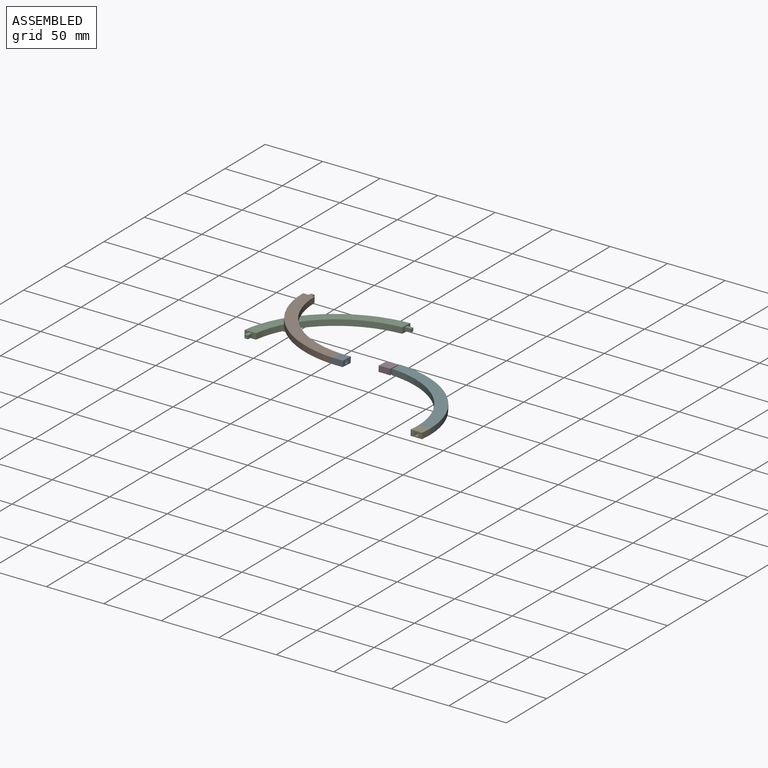
[diagram: assembled view]
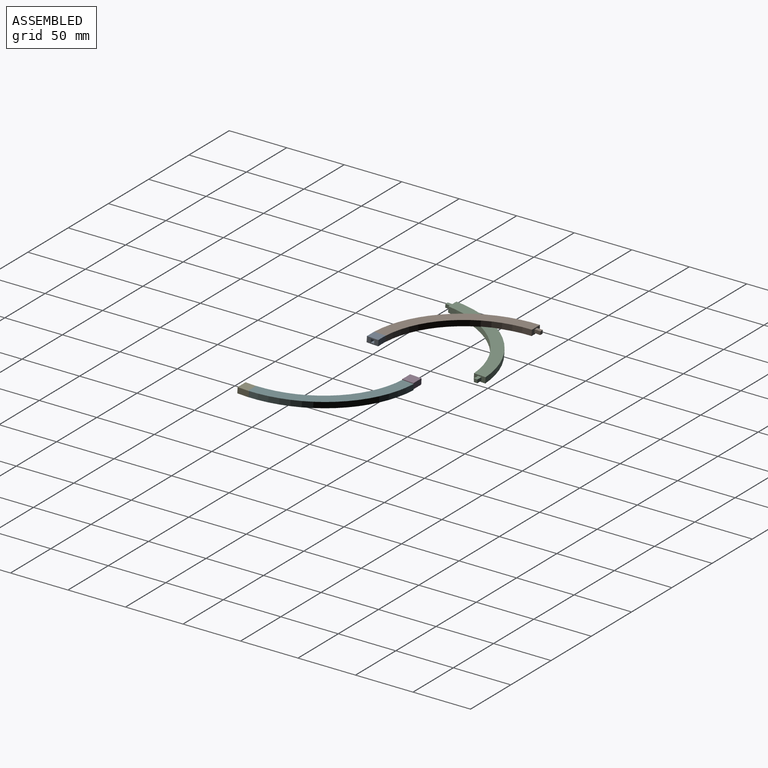
[diagram: assembled view, second angle]
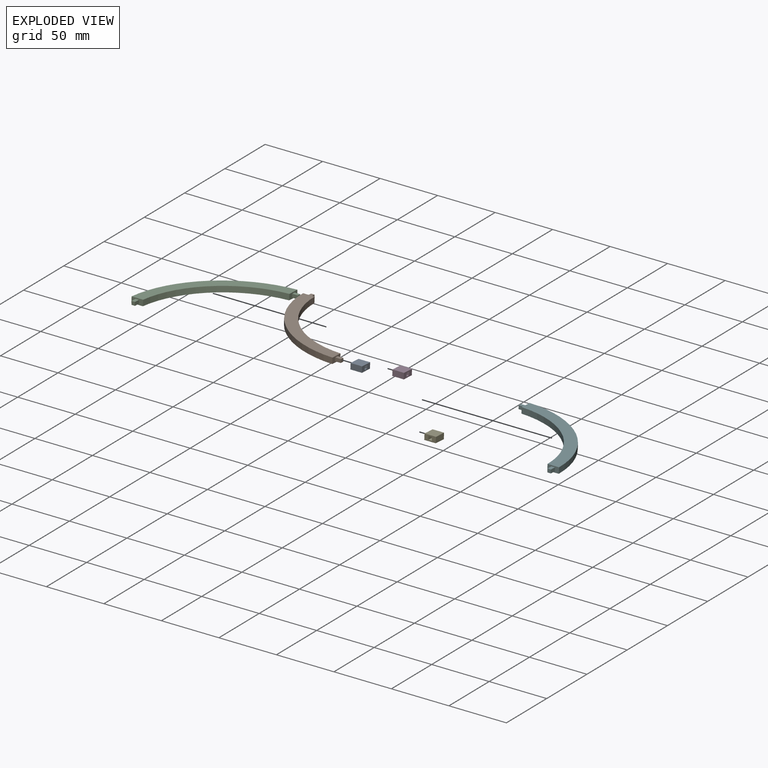
[diagram: exploded view]
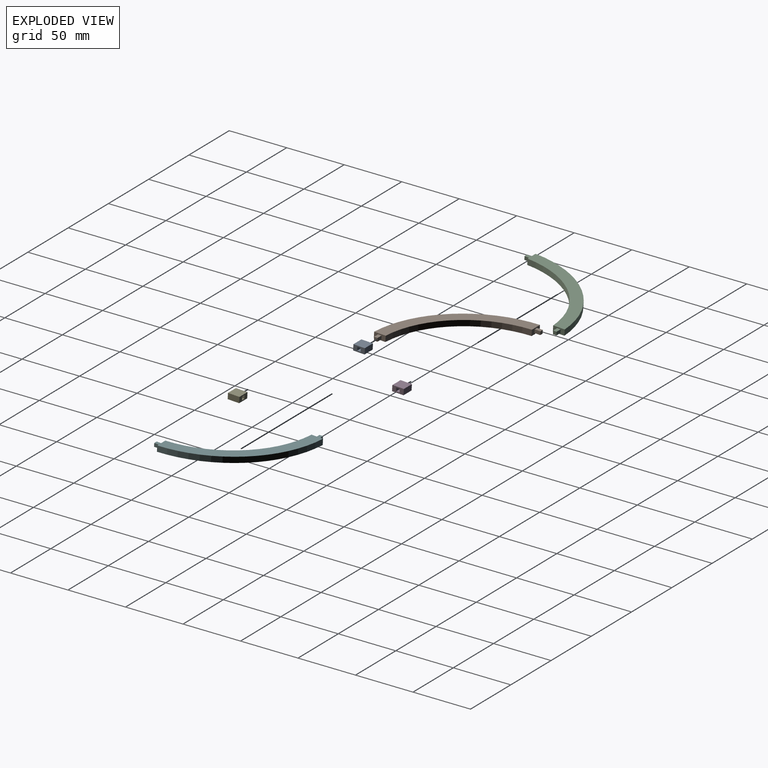
[diagram: exploded view, second angle]
ASSEMBLY  parts=6 mates=4
PART A: 16 faces, bbox 10x10x5 mm
  f0: plane 10.02x5mm, normal (1,0,0), area 41.1mm2, adj f2,f3,f4,f5,f11,f12,f13,f14
  f1: plane 10.02x5mm, normal (-1,0,0), area 41.1mm2, adj f2,f3,f4,f5,f6,f7,f8,f9
  f2: plane 10x5mm, normal (0,-1,0), area 50mm2, adj f0,f1,f4,f5
  f3: cylinder r=80mm len=10mm, axis (0,0,-1), area 50mm2, adj f0,f1,f4,f5
  f4: plane 10.02x10mm, normal (0,0,1), area 99.1mm2, adj f0,f1,f2,f3
  f5: plane 10.02x10mm, normal (0,0,-1), area 99.1mm2, adj f0,f1,f2,f3
  f6: plane 4x3mm, normal (0,0,1), area 12mm2, adj f1,f7,f9,f10
  f7: plane 4x3mm, normal (0,1,0), area 12mm2, adj f1,f6,f8,f10
  f8: plane 4x3mm, normal (0,0,-1), area 12mm2, adj f1,f7,f9,f10
  f9: plane 4x3mm, normal (0,-1,0), area 12mm2, adj f1,f6,f8,f10
  f10: plane 3x3mm, normal (-1,0,0), area 9mm2, adj f6,f7,f8,f9
  f11: plane 4x3mm, normal (0,0,1), area 12mm2, adj f0,f12,f14,f15
  f12: plane 4x3mm, normal (0,-1,0), area 12mm2, adj f0,f11,f13,f15
  f13: plane 4x3mm, normal (0,0,-1), area 12mm2, adj f0,f12,f14,f15
  f14: plane 4x3mm, normal (0,1,0), area 12mm2, adj f0,f11,f13,f15
  f15: plane 3x3mm, normal (1,0,0), area 9mm2, adj f11,f12,f13,f14
PART B: 16 faces, bbox 89.9x89.9x5 mm
  f0: plane 10.02x5mm, normal (0,-1,0), area 41.1mm2, adj f1,f3,f4,f5,f6,f7,f8,f9
  f1: cylinder r=90mm len=84.86mm, axis (0,0,-1), area 656.8mm2, adj f0,f2,f4,f5
  f2: plane 10.02x5mm, normal (-1,0,0), area 41.1mm2, adj f1,f3,f4,f5,f11,f12,f13,f14
  f3: cylinder r=80mm len=74.84mm, axis (0,0,-1), area 578.3mm2, adj f0,f2,f4,f5
  f4: plane 84.86x84.86mm, normal (0,0,1), area 1235.1mm2, adj f0,f1,f2,f3
  f5: plane 84.86x84.86mm, normal (0,0,-1), area 1235.1mm2, adj f0,f1,f2,f3
  f6: plane 5x3mm, normal (0,0,-1), area 15mm2, adj f0,f7,f9,f10
  f7: plane 5x3mm, normal (1,0,0), area 15mm2, adj f0,f6,f8,f10
  f8: plane 5x3mm, normal (0,0,1), area 15mm2, adj f0,f7,f9,f10
  f9: plane 5x3mm, normal (-1,0,0), area 15mm2, adj f0,f6,f8,f10
  f10: plane 3x3mm, normal (0,-1,0), area 9mm2, adj f6,f7,f8,f9
  f11: plane 5x3mm, normal (0,0,-1), area 15mm2, adj f2,f12,f14,f15
  f12: plane 5x3mm, normal (0,-1,0), area 15mm2, adj f2,f11,f13,f15
  f13: plane 5x3mm, normal (0,0,1), area 15mm2, adj f2,f12,f14,f15
  f14: plane 5x3mm, normal (0,1,0), area 15mm2, adj f2,f11,f13,f15
  f15: plane 3x3mm, normal (-1,0,0), area 9mm2, adj f11,f12,f13,f14
PART C: same geometry as B
PART D: same geometry as A
PART E: same geometry as A
PART F: same geometry as B
PLACE A rot(axis=(0,1,-0.03),180deg) t=(12.97,82.18,20.96)mm
PLACE B rot(axis=(0.71,-0.71,0.02),177.9deg) t=(13.97,82.17,20.96)mm
PLACE C rot(axis=(-0.03,0.03,1),90deg) t=(13.97,-0.69,15.45)mm
PLACE D rot(axis=(1,0,0),177deg) t=(26.28,-47.47,11.75)mm
PLACE E rot(axis=(-0.03,0.03,1),90deg) t=(27.27,-45.83,6.7)mm
PLACE F rot(axis=(-1,0,0),3deg) t=(27.28,-46.83,6.75)mm
MATE planar F.f15 <-> D.f15  axis (-1,0,0) through (27.28,38.04,4.81)mm
MATE revolute B.f10 <-> A.f10  axis (1,0,0) through (13.97,-2.69,22.91)mm
MATE planar B.f10 <-> C.f10  axis (1,0,0) through (13.97,-2.69,22.91)mm
MATE revolute F.f10 <-> E.f10  axis (0,-1,0.05) through (112.13,-46.7,9.25)mm
